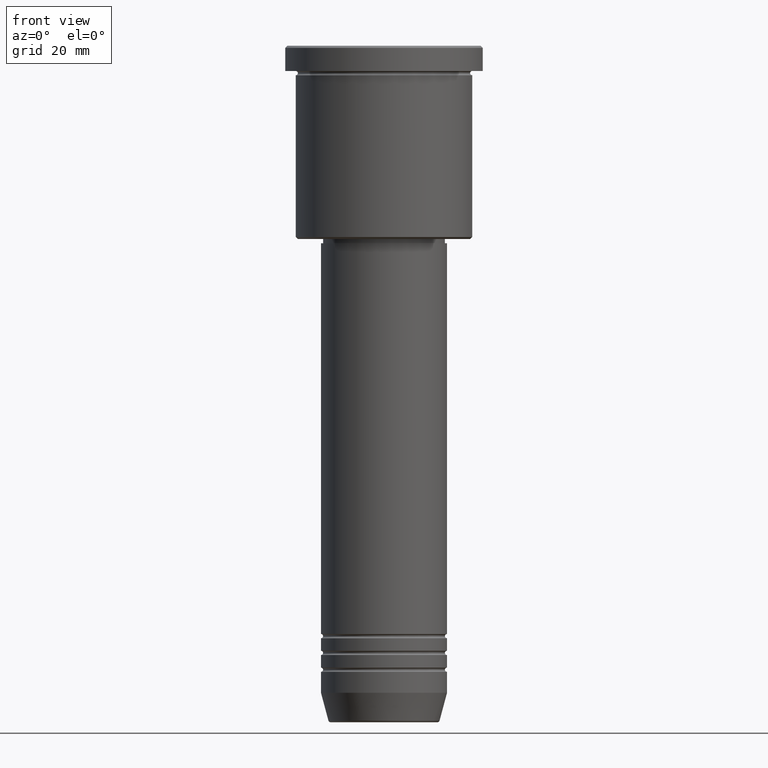
[diagram: clean part render]
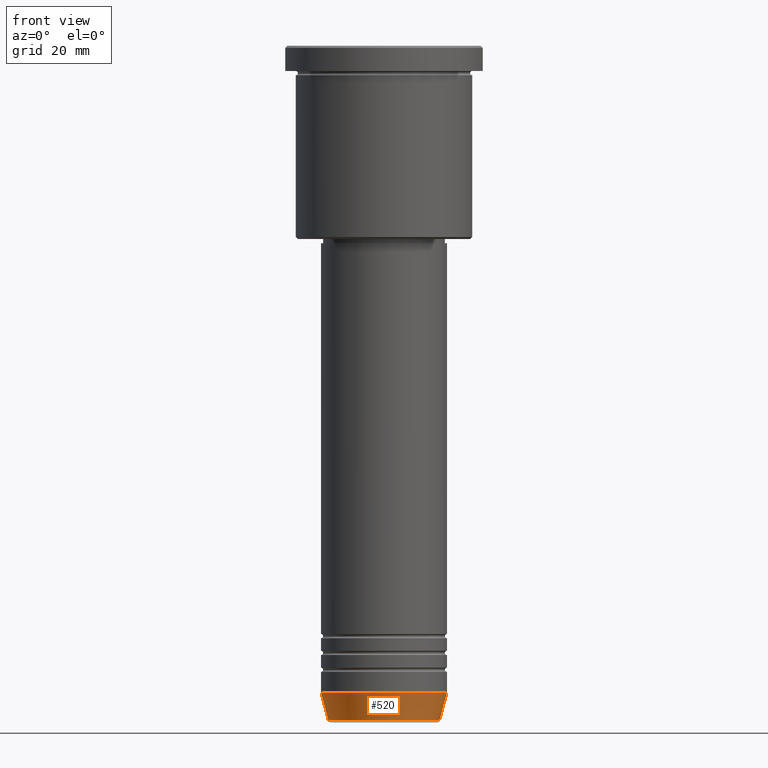
[diagram: same view with one face highlighted and labeled with its STEP entity id]
A machine part, front view. The second image highlights one B-rep face of the part: STEP entity #520.
In plain terms, the highlighted conical surface has half-angle 15 deg.
Its self-contained STEP definition (entity closure, byte-faithful):
#15 = VECTOR ( 'NONE', #878, 1000.000000000000000 ) ;
#37 = CARTESIAN_POINT ( 'NONE',  ( 15.00000000000000000, 0.000000000000000000, -154.0000000000000284 ) ) ;
#48 = CIRCLE ( 'NONE', #608, 15.00000000000000000 ) ;
#50 = AXIS2_PLACEMENT_3D ( 'NONE', #1169, #333, #441 ) ;
#106 = CONICAL_SURFACE ( 'NONE', #529, 15.00000000000000000, 0.2617993877991500740 ) ;
#110 = EDGE_CURVE ( 'NONE', #867, #211, #861, .T. ) ;
#112 = CARTESIAN_POINT ( 'NONE',  ( -15.00000000000000000, 1.836970198721029589E-15, -154.0000000000000284 ) ) ;
#211 = VERTEX_POINT ( 'NONE', #440 ) ;
#215 = ORIENTED_EDGE ( 'NONE', *, *, #1065, .T. ) ;
#219 = VECTOR ( 'NONE', #746, 1000.000000000000000 ) ;
#277 = VERTEX_POINT ( 'NONE', #824 ) ;
#288 = LINE ( 'NONE', #112, #219 ) ;
#299 = EDGE_CURVE ( 'NONE', #277, #1024, #288, .T. ) ;
#309 = CARTESIAN_POINT ( 'NONE',  ( -15.00000000000000000, 1.836970198721029589E-15, -154.0000000000000284 ) ) ;
#333 = DIRECTION ( 'NONE',  ( -0.000000000000000000, -0.000000000000000000, 1.000000000000000000 ) ) ;
#348 = EDGE_CURVE ( 'NONE', #1024, #211, #48, .T. ) ;
#406 = ORIENTED_EDGE ( 'NONE', *, *, #348, .F. ) ;
#440 = CARTESIAN_POINT ( 'NONE',  ( 15.00000000000000000, 0.000000000000000000, -154.0000000000000284 ) ) ;
#441 = DIRECTION ( 'NONE',  ( 1.000000000000000000, 0.000000000000000000, 0.000000000000000000 ) ) ;
#520 = ADVANCED_FACE ( 'NONE', ( #885 ), #106, .T. ) ;
#529 = AXIS2_PLACEMENT_3D ( 'NONE', #1074, #991, #532 ) ;
#532 = DIRECTION ( 'NONE',  ( 1.000000000000000000, 0.000000000000000000, 0.000000000000000000 ) ) ;
#608 = AXIS2_PLACEMENT_3D ( 'NONE', #1020, #740, #831 ) ;
#613 = CARTESIAN_POINT ( 'NONE',  ( 13.22365507213719482, 0.000000000000000000, -160.6294095225512706 ) ) ;
#740 = DIRECTION ( 'NONE',  ( -0.000000000000000000, -0.000000000000000000, 1.000000000000000000 ) ) ;
#746 = DIRECTION ( 'NONE',  ( -0.2588190451025213501, 3.169619151431772337E-17, 0.9659258262890680902 ) ) ;
#753 = ORIENTED_EDGE ( 'NONE', *, *, #299, .F. ) ;
#824 = CARTESIAN_POINT ( 'NONE',  ( -13.22365507213719660, 1.728200442216588780E-15, -160.6294095225512706 ) ) ;
#831 = DIRECTION ( 'NONE',  ( 1.000000000000000000, 0.000000000000000000, 0.000000000000000000 ) ) ;
#861 = LINE ( 'NONE', #37, #15 ) ;
#867 = VERTEX_POINT ( 'NONE', #613 ) ;
#878 = DIRECTION ( 'NONE',  ( 0.2588190451025213501, 0.000000000000000000, 0.9659258262890680902 ) ) ;
#885 = FACE_OUTER_BOUND ( 'NONE', #1109, .T. ) ;
#948 = ORIENTED_EDGE ( 'NONE', *, *, #110, .T. ) ;
#991 = DIRECTION ( 'NONE',  ( -0.000000000000000000, -0.000000000000000000, 1.000000000000000000 ) ) ;
#1020 = CARTESIAN_POINT ( 'NONE',  ( 0.000000000000000000, 0.000000000000000000, -154.0000000000000284 ) ) ;
#1024 = VERTEX_POINT ( 'NONE', #309 ) ;
#1065 = EDGE_CURVE ( 'NONE', #277, #867, #1085, .T. ) ;
#1074 = CARTESIAN_POINT ( 'NONE',  ( 0.000000000000000000, 0.000000000000000000, -154.0000000000000284 ) ) ;
#1085 = CIRCLE ( 'NONE', #50, 13.22365507213719482 ) ;
#1109 = EDGE_LOOP ( 'NONE', ( #753, #215, #948, #406 ) ) ;
#1169 = CARTESIAN_POINT ( 'NONE',  ( 0.000000000000000000, 0.000000000000000000, -160.6294095225512706 ) ) ;